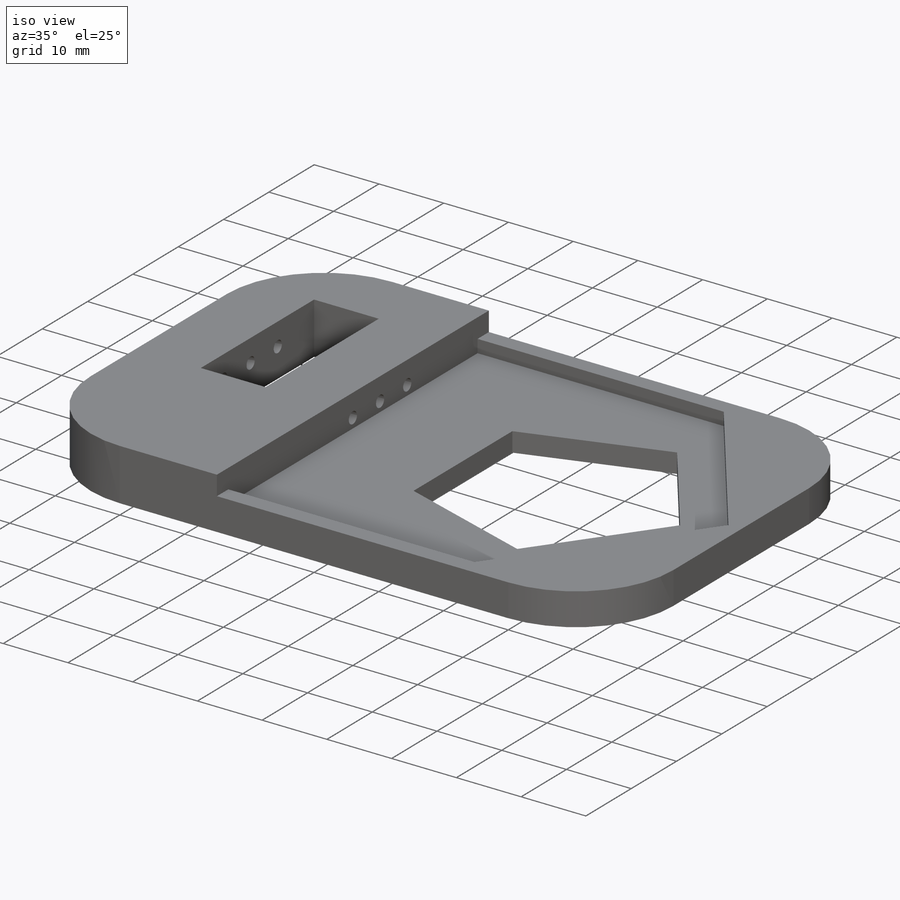
[diagram: iso view]
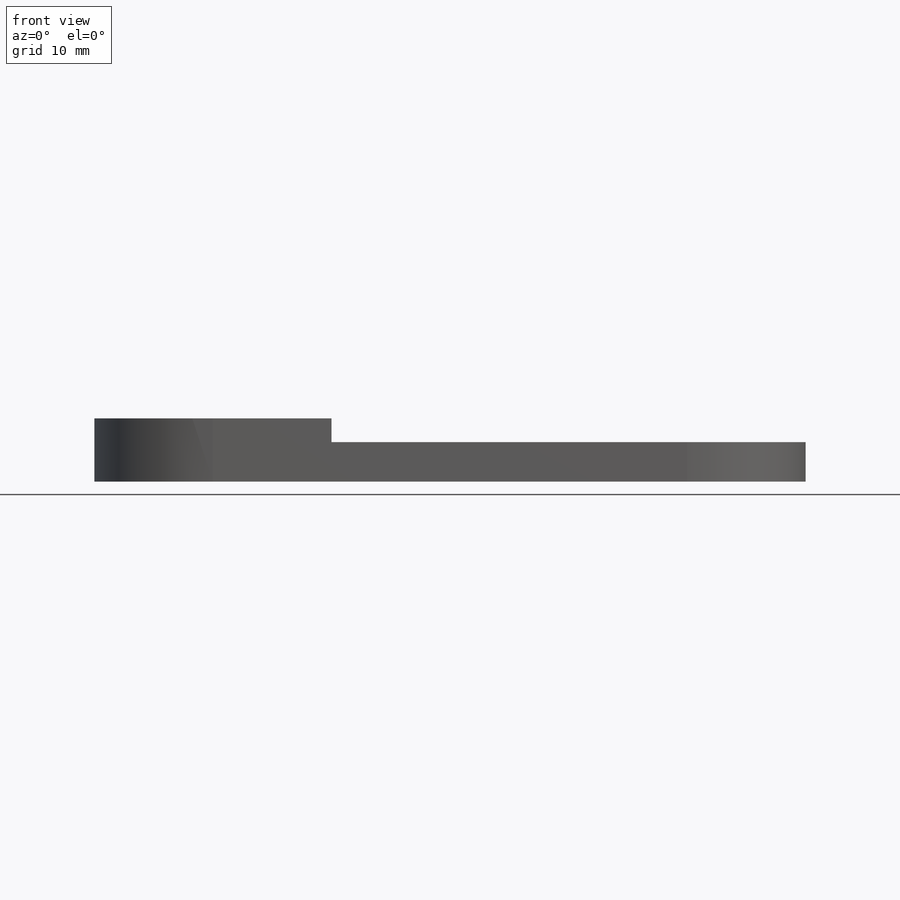
[diagram: front view]
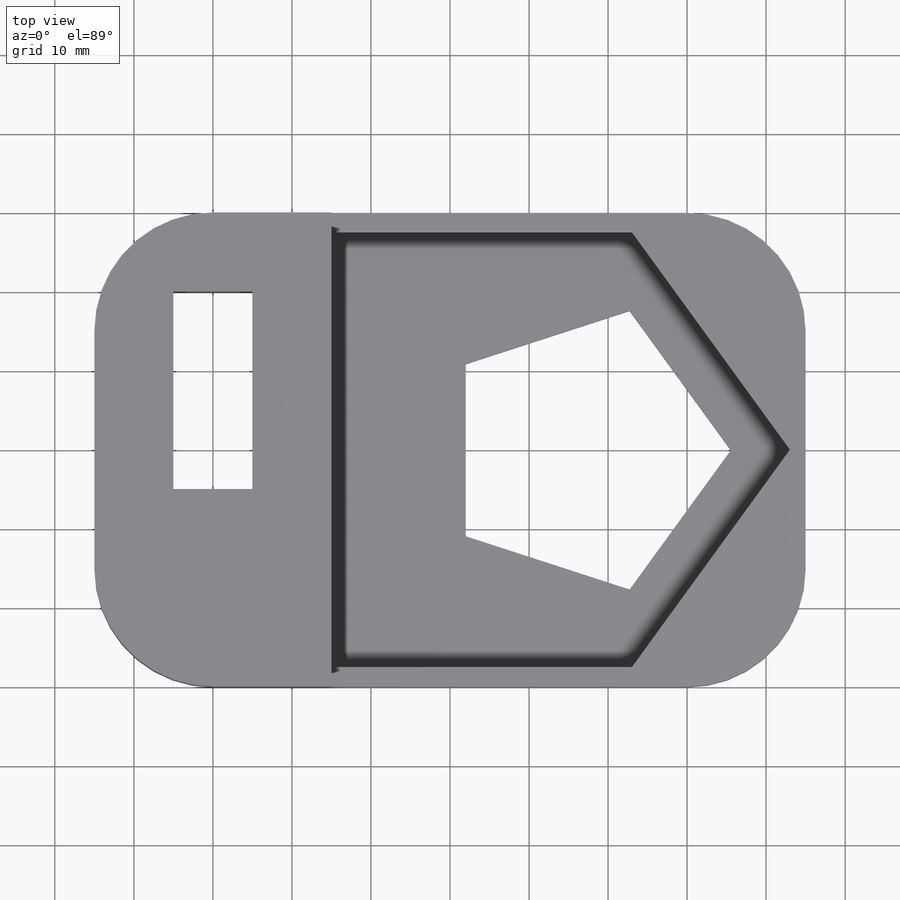
[diagram: top view]
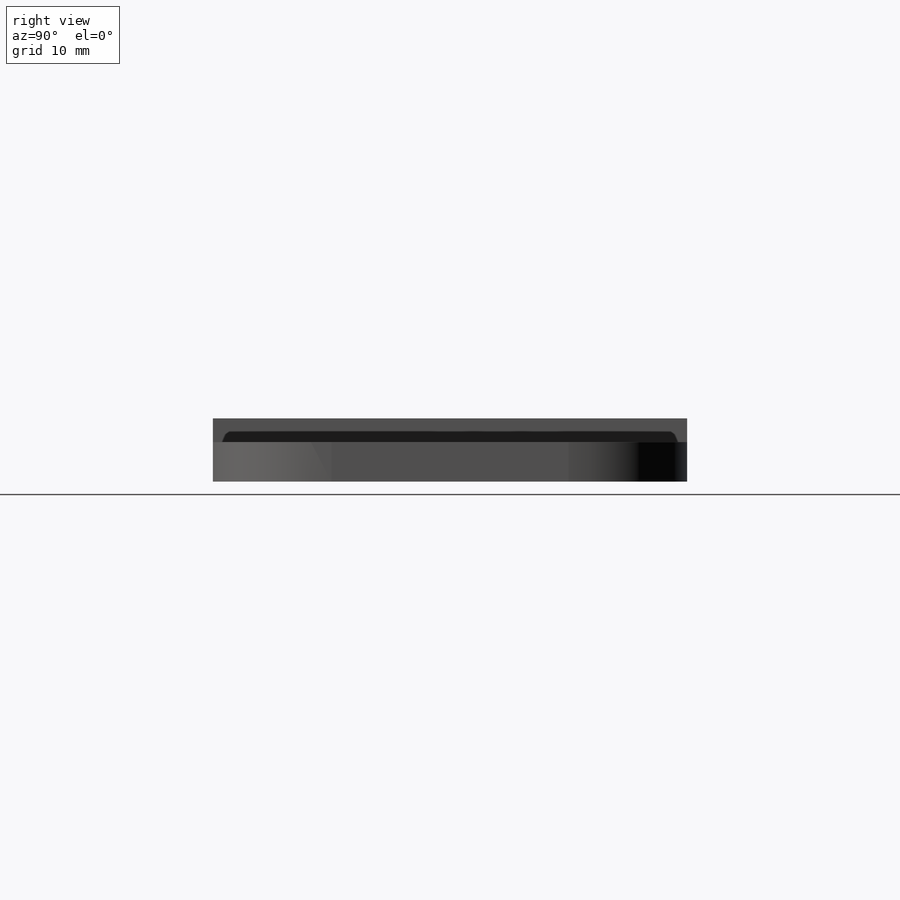
[diagram: right view]
SOLIDWORKS PART (.sldprt)
format: sldprt  version: not decoded by parser v0  size: 247,808 bytes
history: native  units: mm
features: sketch x6, extrude x3, cut_extrude x3, material x1, fillet x1 (+12 scaffold rows collapsed)
feature tree (26):
  scaffold x12  (default folders/planes/origin — collapsed)
  material  "Material <not specified>"
  sketch  "Sketch1"  dims[D1=60.0mm D2=90.0mm]
  extrude  "Boss-Extrude1"  Depth=3mm
  sketch  "Sketch2"  dims[c1.D1=2.0mm c1.D2=90.0mm c2.D2=54.0deg c2.D3=45.0mm c2.D4=13.0mm]
  extrude  "Boss-Extrude2"  Depth=2mm
  sketch  "Sketch4"  dims[D1=0.0mm]
  extrude  "Boss-Extrude4"  Depth=3mm
  sketch  "Sketch5"  dims[D1=1.8mm D2=1.5mm D3=3.0]
  cut_extrude  "Cut-Extrude1"  Depth=22mm
  sketch  "Sketch6"  dims[c1.D1=10.0mm c1.D2=10.0mm c1.D3=10.0mm c1.D4=35.0mm c2.D1=10.0mm]
  cut_extrude  "Cut-Extrude2"  [1 undecoded]
  fillet  "Fillet1"  Radius=15mm
  sketch  "Sketch7"  dims[D1=26.0mm]
  cut_extrude  "Cut-Extrude3"  [1 undecoded]
decode coverage: 11 of 13 modeling features carry decoded parameters
note: 2 parameter values undecoded
note: suppression state not decoded; provenance and decode notes live in map.json
